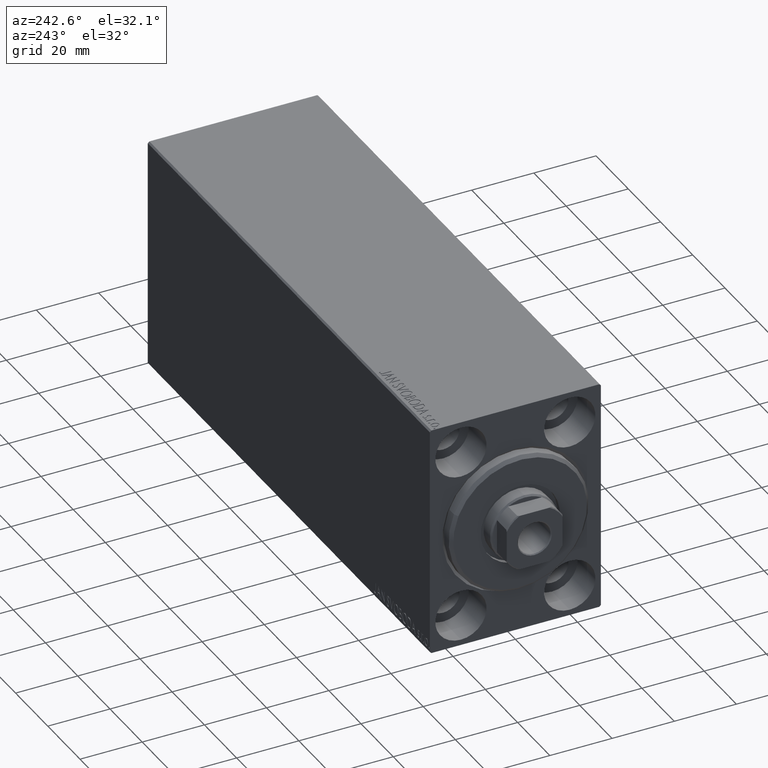
[diagram: clean part render]
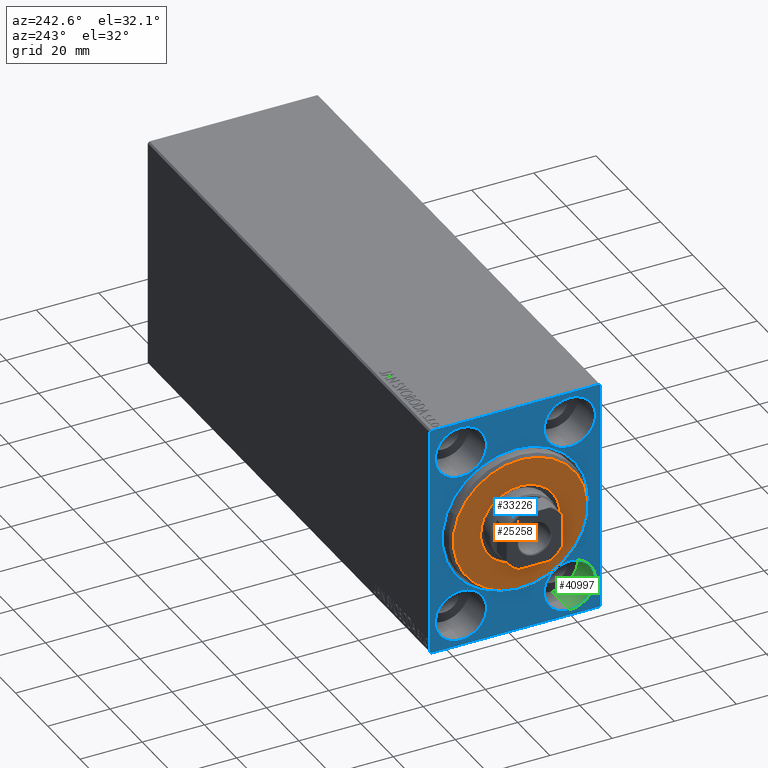
[diagram: same view with three faces highlighted in distinct colors, each labeled with its STEP entity id]
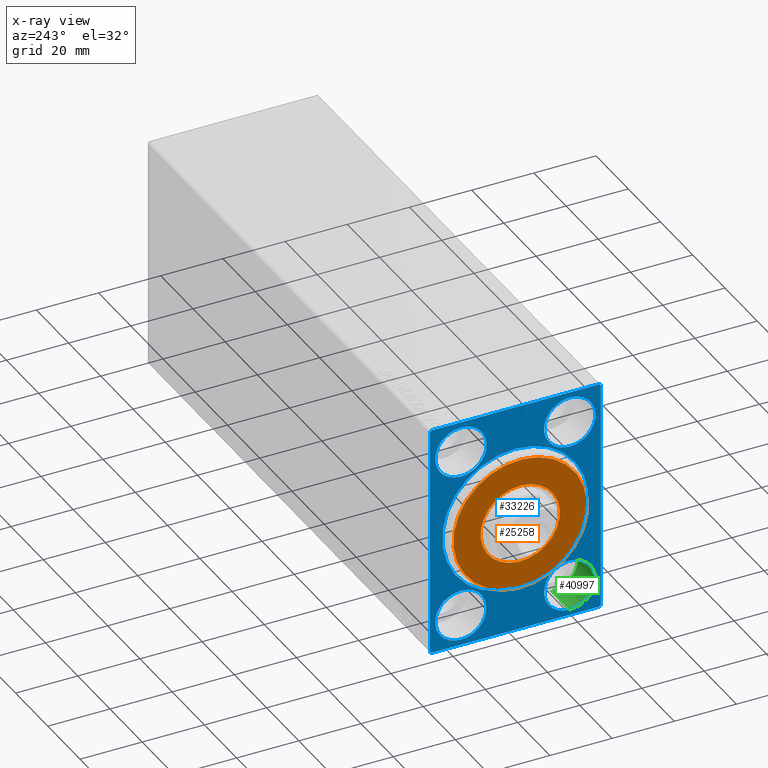
[diagram: x-ray of the same camera — body ghosted, the three highlighted faces saturated]
A machine part, auxiliary view with three faces highlighted in distinct colors.
The next image is the same camera in x-ray (body ghosted, the three faces saturated) — at least one of them is partly hidden behind the body in this view.
Their STEP definitions:

[orange] entity #25258 — the highlighted planar face has unit normal (-1, 0, 0).
#2694 = CIRCLE ( 'NONE', #18907, 12.75000000000000000 ) ;
#3020 = CARTESIAN_POINT ( 'NONE',  ( 3.000000000000000000, 0.000000000000000000, 0.000000000000000000 ) ) ;
#3400 = VERTEX_POINT ( 'NONE', #16558 ) ;
#4072 = ORIENTED_EDGE ( 'NONE', *, *, #18450, .T. ) ;
#4600 = ORIENTED_EDGE ( 'NONE', *, *, #41935, .T. ) ;
#6608 = DIRECTION ( 'NONE',  ( 0.000000000000000000, 0.000000000000000000, -1.000000000000000000 ) ) ;
#7212 = CARTESIAN_POINT ( 'NONE',  ( 3.000000000000000000, 1.561424668912874914E-15, -12.75000000000000000 ) ) ;
#8387 = FACE_BOUND ( 'NONE', #39332, .T. ) ;
#9866 = DIRECTION ( 'NONE',  ( 0.000000000000000000, 0.000000000000000000, -1.000000000000000000 ) ) ;
#10084 = DIRECTION ( 'NONE',  ( 1.000000000000000000, -0.000000000000000000, 0.000000000000000000 ) ) ;
#12261 = CIRCLE ( 'NONE', #36903, 21.50000000000000355 ) ;
#12539 = CIRCLE ( 'NONE', #18168, 12.75000000000000000 ) ;
#14109 = CARTESIAN_POINT ( 'NONE',  ( 3.000000000000000000, 0.000000000000000000, 21.50000000000000355 ) ) ;
#14992 = DIRECTION ( 'NONE',  ( 1.000000000000000000, -0.000000000000000000, 0.000000000000000000 ) ) ;
#16558 = CARTESIAN_POINT ( 'NONE',  ( 3.000000000000000000, 2.694222958124177598E-15, -21.50000000000000355 ) ) ;
#18168 = AXIS2_PLACEMENT_3D ( 'NONE', #30378, #40281, #23541 ) ;
#18289 = CARTESIAN_POINT ( 'NONE',  ( 3.000000000000000000, 0.000000000000000000, 0.000000000000000000 ) ) ;
#18450 = EDGE_CURVE ( 'NONE', #28772, #3400, #25815, .T. ) ;
#18794 = EDGE_CURVE ( 'NONE', #21987, #38881, #2694, .T. ) ;
#18907 = AXIS2_PLACEMENT_3D ( 'NONE', #34121, #33897, #26839 ) ;
#21840 = EDGE_CURVE ( 'NONE', #3400, #28772, #12261, .T. ) ;
#21987 = VERTEX_POINT ( 'NONE', #7212 ) ;
#22906 = ORIENTED_EDGE ( 'NONE', *, *, #18794, .T. ) ;
#23541 = DIRECTION ( 'NONE',  ( 0.000000000000000000, 0.000000000000000000, -1.000000000000000000 ) ) ;
#23705 = AXIS2_PLACEMENT_3D ( 'NONE', #33294, #26241, #6608 ) ;
#25122 = FACE_OUTER_BOUND ( 'NONE', #27815, .T. ) ;
#25258 = ADVANCED_FACE ( 'NONE', ( #25122, #8387 ), #31530, .T. ) ;
#25815 = CIRCLE ( 'NONE', #23705, 21.50000000000000355 ) ;
#26241 = DIRECTION ( 'NONE',  ( 1.000000000000000000, -0.000000000000000000, 0.000000000000000000 ) ) ;
#26839 = DIRECTION ( 'NONE',  ( 0.000000000000000000, 0.000000000000000000, -1.000000000000000000 ) ) ;
#27815 = EDGE_LOOP ( 'NONE', ( #4072, #29530 ) ) ;
#28772 = VERTEX_POINT ( 'NONE', #14109 ) ;
#29530 = ORIENTED_EDGE ( 'NONE', *, *, #21840, .T. ) ;
#30378 = CARTESIAN_POINT ( 'NONE',  ( 3.000000000000000000, 0.000000000000000000, 0.000000000000000000 ) ) ;
#31530 = PLANE ( 'NONE',  #36177 ) ;
#33294 = CARTESIAN_POINT ( 'NONE',  ( 3.000000000000000000, 0.000000000000000000, 0.000000000000000000 ) ) ;
#33897 = DIRECTION ( 'NONE',  ( -1.000000000000000000, 0.000000000000000000, -0.000000000000000000 ) ) ;
#34121 = CARTESIAN_POINT ( 'NONE',  ( 3.000000000000000000, 0.000000000000000000, 0.000000000000000000 ) ) ;
#35261 = DIRECTION ( 'NONE',  ( 0.000000000000000000, 0.000000000000000000, -1.000000000000000000 ) ) ;
#36177 = AXIS2_PLACEMENT_3D ( 'NONE', #18289, #14992, #35261 ) ;
#36903 = AXIS2_PLACEMENT_3D ( 'NONE', #3020, #10084, #9866 ) ;
#37801 = CARTESIAN_POINT ( 'NONE',  ( 3.000000000000000000, 0.000000000000000000, 12.75000000000000000 ) ) ;
#38881 = VERTEX_POINT ( 'NONE', #37801 ) ;
#39332 = EDGE_LOOP ( 'NONE', ( #4600, #22906 ) ) ;
#40281 = DIRECTION ( 'NONE',  ( -1.000000000000000000, 0.000000000000000000, -0.000000000000000000 ) ) ;
#41935 = EDGE_CURVE ( 'NONE', #38881, #21987, #12539, .T. ) ;

[blue] entity #33226 — the highlighted planar face has unit normal (1, 0, 0).
#27 = CARTESIAN_POINT ( 'NONE',  ( 0.000000000000000000, -17.49999999999999645, 27.49999999999999645 ) ) ;
#208 = VECTOR ( 'NONE', #2965, 1000.000000000000114 ) ;
#233 = CARTESIAN_POINT ( 'NONE',  ( 0.000000000000000000, -27.50000000000000355, -37.50000000000000000 ) ) ;
#317 = CARTESIAN_POINT ( 'NONE',  ( 0.000000000000000000, -26.99999999999997513, -37.50000000000000000 ) ) ;
#661 = EDGE_CURVE ( 'NONE', #8235, #28925, #5551, .T. ) ;
#1230 = EDGE_CURVE ( 'NONE', #1488, #36402, #7681, .T. ) ;
#1440 = EDGE_CURVE ( 'NONE', #28925, #8235, #25246, .T. ) ;
#1488 = VERTEX_POINT ( 'NONE', #9451 ) ;
#1585 = VECTOR ( 'NONE', #19634, 1000.000000000000000 ) ;
#1915 = VERTEX_POINT ( 'NONE', #14448 ) ;
#2041 = EDGE_LOOP ( 'NONE', ( #24116, #18134 ) ) ;
#2089 = ORIENTED_EDGE ( 'NONE', *, *, #21779, .T. ) ;
#2291 = CIRCLE ( 'NONE', #10786, 8.250000000000000000 ) ;
#2624 = AXIS2_PLACEMENT_3D ( 'NONE', #19867, #5994, #29796 ) ;
#2652 = DIRECTION ( 'NONE',  ( 0.000000000000000000, 0.000000000000000000, -1.000000000000000000 ) ) ;
#2724 = CARTESIAN_POINT ( 'NONE',  ( 0.000000000000000000, -17.49999999999999645, 35.74999999999999289 ) ) ;
#2965 = DIRECTION ( 'NONE',  ( 0.000000000000000000, -0.7071067811865474617, -0.7071067811865474617 ) ) ;
#3185 = CARTESIAN_POINT ( 'NONE',  ( 0.000000000000000000, 27.50000000000000355, -37.00000000000002842 ) ) ;
#3278 = EDGE_CURVE ( 'NONE', #9045, #12346, #5762, .T. ) ;
#3335 = FACE_BOUND ( 'NONE', #10847, .T. ) ;
#3517 = VERTEX_POINT ( 'NONE', #10391 ) ;
#3675 = ORIENTED_EDGE ( 'NONE', *, *, #13318, .T. ) ;
#4327 = EDGE_CURVE ( 'NONE', #23355, #12346, #25776, .T. ) ;
#4739 = CARTESIAN_POINT ( 'NONE',  ( 0.000000000000000000, -17.50000000000000355, -27.50000000000000355 ) ) ;
#4952 = DIRECTION ( 'NONE',  ( 0.000000000000000000, 0.000000000000000000, 1.000000000000000000 ) ) ;
#5041 = DIRECTION ( 'NONE',  ( 0.000000000000000000, 0.000000000000000000, 1.000000000000000000 ) ) ;
#5133 = CARTESIAN_POINT ( 'NONE',  ( 0.000000000000000000, -27.00000000000000355, 37.50000000000000000 ) ) ;
#5228 = EDGE_LOOP ( 'NONE', ( #2089, #32288 ) ) ;
#5551 = CIRCLE ( 'NONE', #8372, 8.249999999999992895 ) ;
#5681 = CARTESIAN_POINT ( 'NONE',  ( 0.000000000000000000, -17.49999999999999645, 19.25000000000000000 ) ) ;
#5762 = LINE ( 'NONE', #32661, #33063 ) ;
#5994 = DIRECTION ( 'NONE',  ( -1.000000000000000000, 0.000000000000000000, 0.000000000000000000 ) ) ;
#6009 = DIRECTION ( 'NONE',  ( -1.000000000000000000, 0.000000000000000000, 0.000000000000000000 ) ) ;
#6188 = LINE ( 'NONE', #233, #1585 ) ;
#6344 = DIRECTION ( 'NONE',  ( 0.000000000000000000, 0.000000000000000000, 1.000000000000000000 ) ) ;
#6712 = LINE ( 'NONE', #3185, #208 ) ;
#6865 = FACE_BOUND ( 'NONE', #19444, .T. ) ;
#6994 = DIRECTION ( 'NONE',  ( -1.000000000000000000, 0.000000000000000000, 0.000000000000000000 ) ) ;
#7120 = EDGE_CURVE ( 'NONE', #9045, #27632, #10341, .T. ) ;
#7681 = CIRCLE ( 'NONE', #32298, 23.49999999999998934 ) ;
#8235 = VERTEX_POINT ( 'NONE', #22914 ) ;
#8372 = AXIS2_PLACEMENT_3D ( 'NONE', #23304, #13166, #15837 ) ;
#9045 = VERTEX_POINT ( 'NONE', #13546 ) ;
#9451 = CARTESIAN_POINT ( 'NONE',  ( 0.000000000000000000, 2.877919977996279137E-15, -23.49999999999998934 ) ) ;
#9558 = VERTEX_POINT ( 'NONE', #5681 ) ;
#10250 = LINE ( 'NONE', #13545, #26425 ) ;
#10341 = LINE ( 'NONE', #43165, #35977 ) ;
#10391 = CARTESIAN_POINT ( 'NONE',  ( 0.000000000000000000, 17.49999999999999645, -19.25000000000000355 ) ) ;
#10579 = VERTEX_POINT ( 'NONE', #18462 ) ;
#10695 = DIRECTION ( 'NONE',  ( 0.000000000000000000, 0.000000000000000000, -1.000000000000000000 ) ) ;
#10786 = AXIS2_PLACEMENT_3D ( 'NONE', #4739, #18178, #4952 ) ;
#10847 = EDGE_LOOP ( 'NONE', ( #43132, #38841 ) ) ;
#11556 = EDGE_CURVE ( 'NONE', #19616, #16461, #6188, .T. ) ;
#12222 = ORIENTED_EDGE ( 'NONE', *, *, #16612, .T. ) ;
#12346 = VERTEX_POINT ( 'NONE', #36009 ) ;
#12436 = PLANE ( 'NONE',  #41987 ) ;
#12798 = CARTESIAN_POINT ( 'NONE',  ( 0.000000000000000000, 0.000000000000000000, 0.000000000000000000 ) ) ;
#13163 = EDGE_CURVE ( 'NONE', #31547, #31003, #2291, .T. ) ;
#13166 = DIRECTION ( 'NONE',  ( -1.000000000000000000, 0.000000000000000000, 0.000000000000000000 ) ) ;
#13318 = EDGE_CURVE ( 'NONE', #23355, #16461, #6712, .T. ) ;
#13545 = CARTESIAN_POINT ( 'NONE',  ( 0.000000000000000000, -27.50000000000000355, 37.50000000000000000 ) ) ;
#13546 = CARTESIAN_POINT ( 'NONE',  ( 0.000000000000000000, 26.99999999999999645, 37.50000000000000711 ) ) ;
#13633 = DIRECTION ( 'NONE',  ( 0.000000000000000000, -1.000000000000000000, -1.261617073437677999E-16 ) ) ;
#14448 = CARTESIAN_POINT ( 'NONE',  ( 0.000000000000000000, -27.50000000000000355, -37.00000000000000000 ) ) ;
#15400 = CARTESIAN_POINT ( 'NONE',  ( 0.000000000000000000, 17.50000000000000355, 35.74999999999999289 ) ) ;
#15642 = ORIENTED_EDGE ( 'NONE', *, *, #35566, .F. ) ;
#15837 = DIRECTION ( 'NONE',  ( 0.000000000000000000, 0.000000000000000000, 1.000000000000000000 ) ) ;
#15858 = AXIS2_PLACEMENT_3D ( 'NONE', #20429, #6994, #28888 ) ;
#15939 = CARTESIAN_POINT ( 'NONE',  ( 0.000000000000000000, -17.50000000000000355, -27.50000000000000355 ) ) ;
#15970 = FACE_BOUND ( 'NONE', #31827, .T. ) ;
#16461 = VERTEX_POINT ( 'NONE', #20262 ) ;
#16612 = EDGE_CURVE ( 'NONE', #19616, #1915, #20757, .T. ) ;
#16785 = FACE_OUTER_BOUND ( 'NONE', #26534, .T. ) ;
#17019 = CARTESIAN_POINT ( 'NONE',  ( 0.000000000000000000, -26.99999999999997513, -37.50000000000000000 ) ) ;
#17374 = EDGE_CURVE ( 'NONE', #31003, #31547, #38996, .T. ) ;
#18134 = ORIENTED_EDGE ( 'NONE', *, *, #31203, .F. ) ;
#18178 = DIRECTION ( 'NONE',  ( -1.000000000000000000, 0.000000000000000000, 0.000000000000000000 ) ) ;
#18462 = CARTESIAN_POINT ( 'NONE',  ( 0.000000000000000000, -27.50000000000000355, 37.00000000000000000 ) ) ;
#18743 = AXIS2_PLACEMENT_3D ( 'NONE', #24895, #35459, #5041 ) ;
#19417 = DIRECTION ( 'NONE',  ( 1.000000000000000000, 0.000000000000000000, 0.000000000000000000 ) ) ;
#19444 = EDGE_LOOP ( 'NONE', ( #38077, #15642 ) ) ;
#19616 = VERTEX_POINT ( 'NONE', #317 ) ;
#19634 = DIRECTION ( 'NONE',  ( 0.000000000000000000, 1.000000000000000000, 0.000000000000000000 ) ) ;
#19867 = CARTESIAN_POINT ( 'NONE',  ( 0.000000000000000000, -17.49999999999999645, 27.49999999999999645 ) ) ;
#19994 = AXIS2_PLACEMENT_3D ( 'NONE', #15939, #6009, #29377 ) ;
#20262 = CARTESIAN_POINT ( 'NONE',  ( 0.000000000000000000, 27.00000000000003197, -37.50000000000000000 ) ) ;
#20429 = CARTESIAN_POINT ( 'NONE',  ( 0.000000000000000000, 17.49999999999999645, -27.50000000000000355 ) ) ;
#20757 = LINE ( 'NONE', #17019, #21992 ) ;
#21459 = ORIENTED_EDGE ( 'NONE', *, *, #7120, .F. ) ;
#21637 = CIRCLE ( 'NONE', #2624, 8.249999999999992895 ) ;
#21779 = EDGE_CURVE ( 'NONE', #36402, #1488, #34086, .T. ) ;
#21856 = CARTESIAN_POINT ( 'NONE',  ( 0.000000000000000000, 17.49999999999999645, -35.75000000000000711 ) ) ;
#21992 = VECTOR ( 'NONE', #23848, 1000.000000000000000 ) ;
#22210 = DIRECTION ( 'NONE',  ( 0.000000000000000000, 0.000000000000000000, -1.000000000000000000 ) ) ;
#22354 = CIRCLE ( 'NONE', #26581, 8.249999999999992895 ) ;
#22641 = ORIENTED_EDGE ( 'NONE', *, *, #1440, .F. ) ;
#22914 = CARTESIAN_POINT ( 'NONE',  ( 0.000000000000000000, 17.50000000000000355, 19.25000000000000000 ) ) ;
#22933 = CARTESIAN_POINT ( 'NONE',  ( 0.000000000000000000, -17.50000000000000355, -19.25000000000000355 ) ) ;
#23304 = CARTESIAN_POINT ( 'NONE',  ( 0.000000000000000000, 17.50000000000000355, 27.49999999999999645 ) ) ;
#23311 = DIRECTION ( 'NONE',  ( -1.000000000000000000, 0.000000000000000000, 0.000000000000000000 ) ) ;
#23355 = VERTEX_POINT ( 'NONE', #26514 ) ;
#23538 = CARTESIAN_POINT ( 'NONE',  ( 0.000000000000000000, 17.50000000000000355, 27.49999999999999645 ) ) ;
#23618 = CARTESIAN_POINT ( 'NONE',  ( 0.000000000000000000, 0.000000000000000000, 23.49999999999998934 ) ) ;
#23848 = DIRECTION ( 'NONE',  ( -0.000000000000000000, -0.7071067811865672237, 0.7071067811865279218 ) ) ;
#23901 = VECTOR ( 'NONE', #42303, 1000.000000000000000 ) ;
#24116 = ORIENTED_EDGE ( 'NONE', *, *, #28074, .F. ) ;
#24457 = ORIENTED_EDGE ( 'NONE', *, *, #661, .F. ) ;
#24895 = CARTESIAN_POINT ( 'NONE',  ( 0.000000000000000000, 17.49999999999999645, -27.50000000000000355 ) ) ;
#25246 = CIRCLE ( 'NONE', #42145, 8.249999999999992895 ) ;
#25776 = LINE ( 'NONE', #35693, #23901 ) ;
#26425 = VECTOR ( 'NONE', #10695, 1000.000000000000000 ) ;
#26514 = CARTESIAN_POINT ( 'NONE',  ( 0.000000000000000000, 27.50000000000000355, -37.00000000000002842 ) ) ;
#26534 = EDGE_LOOP ( 'NONE', ( #40631, #37591, #21459, #39863, #30509, #3675, #33223, #12222 ) ) ;
#26581 = AXIS2_PLACEMENT_3D ( 'NONE', #27, #27586, #40577 ) ;
#26823 = EDGE_CURVE ( 'NONE', #10579, #27632, #30186, .T. ) ;
#27586 = DIRECTION ( 'NONE',  ( -1.000000000000000000, 0.000000000000000000, 0.000000000000000000 ) ) ;
#27632 = VERTEX_POINT ( 'NONE', #5133 ) ;
#28074 = EDGE_CURVE ( 'NONE', #3517, #41284, #31348, .T. ) ;
#28190 = DIRECTION ( 'NONE',  ( 1.000000000000000000, 0.000000000000000000, 0.000000000000000000 ) ) ;
#28588 = CIRCLE ( 'NONE', #18743, 8.250000000000000000 ) ;
#28888 = DIRECTION ( 'NONE',  ( 0.000000000000000000, 0.000000000000000000, 1.000000000000000000 ) ) ;
#28925 = VERTEX_POINT ( 'NONE', #15400 ) ;
#28975 = FACE_BOUND ( 'NONE', #2041, .T. ) ;
#29377 = DIRECTION ( 'NONE',  ( 0.000000000000000000, 0.000000000000000000, 1.000000000000000000 ) ) ;
#29653 = EDGE_CURVE ( 'NONE', #10579, #1915, #10250, .T. ) ;
#29796 = DIRECTION ( 'NONE',  ( 0.000000000000000000, 0.000000000000000000, 1.000000000000000000 ) ) ;
#30186 = LINE ( 'NONE', #33277, #40452 ) ;
#30509 = ORIENTED_EDGE ( 'NONE', *, *, #4327, .F. ) ;
#31003 = VERTEX_POINT ( 'NONE', #22933 ) ;
#31203 = EDGE_CURVE ( 'NONE', #41284, #3517, #28588, .T. ) ;
#31348 = CIRCLE ( 'NONE', #15858, 8.250000000000000000 ) ;
#31547 = VERTEX_POINT ( 'NONE', #32535 ) ;
#31827 = EDGE_LOOP ( 'NONE', ( #22641, #24457 ) ) ;
#32288 = ORIENTED_EDGE ( 'NONE', *, *, #1230, .T. ) ;
#32298 = AXIS2_PLACEMENT_3D ( 'NONE', #12798, #19417, #2652 ) ;
#32535 = CARTESIAN_POINT ( 'NONE',  ( 0.000000000000000000, -17.50000000000000355, -35.75000000000000711 ) ) ;
#32661 = CARTESIAN_POINT ( 'NONE',  ( 0.000000000000000000, 26.99999999999999645, 37.50000000000000711 ) ) ;
#33063 = VECTOR ( 'NONE', #42783, 1000.000000000000000 ) ;
#33223 = ORIENTED_EDGE ( 'NONE', *, *, #11556, .F. ) ;
#33226 = ADVANCED_FACE ( 'NONE', ( #33538, #28975, #6865, #15970, #3335, #16785 ), #12436, .F. ) ;
#33277 = CARTESIAN_POINT ( 'NONE',  ( 0.000000000000000000, -27.50000000000000355, 37.00000000000000000 ) ) ;
#33538 = FACE_BOUND ( 'NONE', #5228, .T. ) ;
#34086 = CIRCLE ( 'NONE', #41118, 23.49999999999998934 ) ;
#35232 = CARTESIAN_POINT ( 'NONE',  ( 0.000000000000000000, 0.000000000000000000, 0.000000000000000000 ) ) ;
#35405 = EDGE_CURVE ( 'NONE', #43492, #9558, #21637, .T. ) ;
#35459 = DIRECTION ( 'NONE',  ( -1.000000000000000000, 0.000000000000000000, 0.000000000000000000 ) ) ;
#35566 = EDGE_CURVE ( 'NONE', #9558, #43492, #22354, .T. ) ;
#35693 = CARTESIAN_POINT ( 'NONE',  ( 0.000000000000000000, 27.50000000000000355, -37.50000000000000000 ) ) ;
#35977 = VECTOR ( 'NONE', #13633, 1000.000000000000000 ) ;
#36009 = CARTESIAN_POINT ( 'NONE',  ( 0.000000000000000000, 27.49999999999999645, 37.00000000000001421 ) ) ;
#36402 = VERTEX_POINT ( 'NONE', #23618 ) ;
#37006 = DIRECTION ( 'NONE',  ( -0.000000000000000000, 0.7071067811865474617, 0.7071067811865474617 ) ) ;
#37591 = ORIENTED_EDGE ( 'NONE', *, *, #26823, .T. ) ;
#38077 = ORIENTED_EDGE ( 'NONE', *, *, #35405, .F. ) ;
#38841 = ORIENTED_EDGE ( 'NONE', *, *, #13163, .F. ) ;
#38996 = CIRCLE ( 'NONE', #19994, 8.250000000000000000 ) ;
#39863 = ORIENTED_EDGE ( 'NONE', *, *, #3278, .T. ) ;
#40452 = VECTOR ( 'NONE', #37006, 1000.000000000000114 ) ;
#40576 = DIRECTION ( 'NONE',  ( 0.000000000000000000, 0.000000000000000000, -1.000000000000000000 ) ) ;
#40577 = DIRECTION ( 'NONE',  ( 0.000000000000000000, 0.000000000000000000, 1.000000000000000000 ) ) ;
#40631 = ORIENTED_EDGE ( 'NONE', *, *, #29653, .F. ) ;
#41118 = AXIS2_PLACEMENT_3D ( 'NONE', #35232, #28190, #22210 ) ;
#41284 = VERTEX_POINT ( 'NONE', #21856 ) ;
#41987 = AXIS2_PLACEMENT_3D ( 'NONE', #42847, #42624, #40576 ) ;
#42145 = AXIS2_PLACEMENT_3D ( 'NONE', #23538, #23311, #6344 ) ;
#42303 = DIRECTION ( 'NONE',  ( 0.000000000000000000, -9.251858538542970348E-17, 1.000000000000000000 ) ) ;
#42624 = DIRECTION ( 'NONE',  ( 1.000000000000000000, 0.000000000000000000, 0.000000000000000000 ) ) ;
#42783 = DIRECTION ( 'NONE',  ( -0.000000000000000000, 0.7071067811865524577, -0.7071067811865426878 ) ) ;
#42847 = CARTESIAN_POINT ( 'NONE',  ( 0.000000000000000000, 0.000000000000000000, 0.000000000000000000 ) ) ;
#43132 = ORIENTED_EDGE ( 'NONE', *, *, #17374, .F. ) ;
#43165 = CARTESIAN_POINT ( 'NONE',  ( 0.000000000000000000, 27.49999999999999645, 37.50000000000000711 ) ) ;
#43492 = VERTEX_POINT ( 'NONE', #2724 ) ;

[green] entity #40997 — the highlighted cylindrical surface (edge-blend (fillet) strip) has radius 8.25 mm, axis along (-1, -0, -0).
#1194 = DIRECTION ( 'NONE',  ( -1.000000000000000000, -0.000000000000000000, -0.000000000000000000 ) ) ;
#2291 = CIRCLE ( 'NONE', #10786, 8.250000000000000000 ) ;
#4506 = LINE ( 'NONE', #11334, #14327 ) ;
#4739 = CARTESIAN_POINT ( 'NONE',  ( 0.000000000000000000, -17.50000000000000355, -27.50000000000000355 ) ) ;
#4952 = DIRECTION ( 'NONE',  ( 0.000000000000000000, 0.000000000000000000, 1.000000000000000000 ) ) ;
#5554 = EDGE_CURVE ( 'NONE', #38634, #31003, #38227, .T. ) ;
#6338 = DIRECTION ( 'NONE',  ( 0.000000000000000000, 0.000000000000000000, 1.000000000000000000 ) ) ;
#10786 = AXIS2_PLACEMENT_3D ( 'NONE', #4739, #18178, #4952 ) ;
#11334 = CARTESIAN_POINT ( 'NONE',  ( 11.00000000000000000, -17.50000000000000355, -35.75000000000000711 ) ) ;
#12118 = VERTEX_POINT ( 'NONE', #17535 ) ;
#13163 = EDGE_CURVE ( 'NONE', #31547, #31003, #2291, .T. ) ;
#13418 = ORIENTED_EDGE ( 'NONE', *, *, #22237, .T. ) ;
#14327 = VECTOR ( 'NONE', #1194, 1000.000000000000000 ) ;
#15092 = DIRECTION ( 'NONE',  ( -1.000000000000000000, -0.000000000000000000, -0.000000000000000000 ) ) ;
#16424 = AXIS2_PLACEMENT_3D ( 'NONE', #26565, #42057, #32152 ) ;
#17144 = CARTESIAN_POINT ( 'NONE',  ( 11.00000000000000000, -17.50000000000000355, -27.50000000000000355 ) ) ;
#17535 = CARTESIAN_POINT ( 'NONE',  ( 11.00000000000000000, -17.50000000000000355, -35.75000000000000711 ) ) ;
#18137 = AXIS2_PLACEMENT_3D ( 'NONE', #17144, #27279, #6338 ) ;
#18178 = DIRECTION ( 'NONE',  ( -1.000000000000000000, 0.000000000000000000, 0.000000000000000000 ) ) ;
#18230 = CARTESIAN_POINT ( 'NONE',  ( 11.00000000000000000, -17.50000000000000355, -19.25000000000000355 ) ) ;
#19529 = ORIENTED_EDGE ( 'NONE', *, *, #13163, .T. ) ;
#22237 = EDGE_CURVE ( 'NONE', #12118, #31547, #4506, .T. ) ;
#22933 = CARTESIAN_POINT ( 'NONE',  ( 0.000000000000000000, -17.50000000000000355, -19.25000000000000355 ) ) ;
#22955 = EDGE_CURVE ( 'NONE', #12118, #38634, #37633, .T. ) ;
#24979 = ORIENTED_EDGE ( 'NONE', *, *, #22955, .F. ) ;
#26565 = CARTESIAN_POINT ( 'NONE',  ( 11.00000000000000000, -17.50000000000000355, -27.50000000000000355 ) ) ;
#27279 = DIRECTION ( 'NONE',  ( -1.000000000000000000, -0.000000000000000000, -0.000000000000000000 ) ) ;
#28744 = CARTESIAN_POINT ( 'NONE',  ( 11.00000000000000000, -17.50000000000000355, -19.25000000000000355 ) ) ;
#31003 = VERTEX_POINT ( 'NONE', #22933 ) ;
#31547 = VERTEX_POINT ( 'NONE', #32535 ) ;
#32152 = DIRECTION ( 'NONE',  ( 0.000000000000000000, 0.000000000000000000, 1.000000000000000000 ) ) ;
#32535 = CARTESIAN_POINT ( 'NONE',  ( 0.000000000000000000, -17.50000000000000355, -35.75000000000000711 ) ) ;
#33236 = FACE_OUTER_BOUND ( 'NONE', #34694, .T. ) ;
#34694 = EDGE_LOOP ( 'NONE', ( #24979, #13418, #19529, #36366 ) ) ;
#36366 = ORIENTED_EDGE ( 'NONE', *, *, #5554, .F. ) ;
#36972 = CYLINDRICAL_SURFACE ( 'NONE', #18137, 8.250000000000000000 ) ;
#37633 = CIRCLE ( 'NONE', #16424, 8.250000000000000000 ) ;
#38227 = LINE ( 'NONE', #28744, #40825 ) ;
#38634 = VERTEX_POINT ( 'NONE', #18230 ) ;
#40825 = VECTOR ( 'NONE', #15092, 1000.000000000000000 ) ;
#40997 = ADVANCED_FACE ( 'NONE', ( #33236 ), #36972, .F. ) ;
#42057 = DIRECTION ( 'NONE',  ( -1.000000000000000000, 0.000000000000000000, 0.000000000000000000 ) ) ;